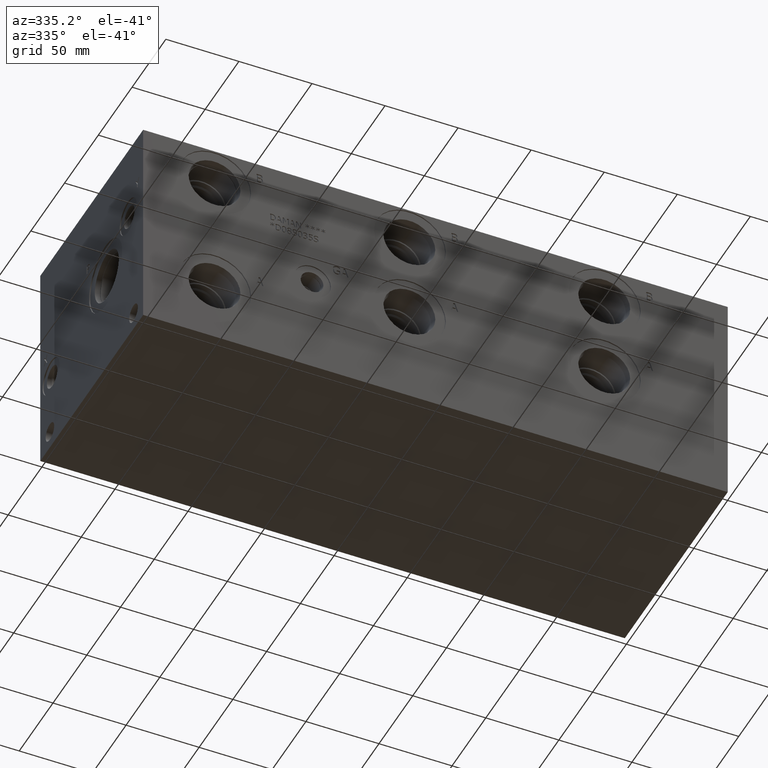
[diagram: clean part render]
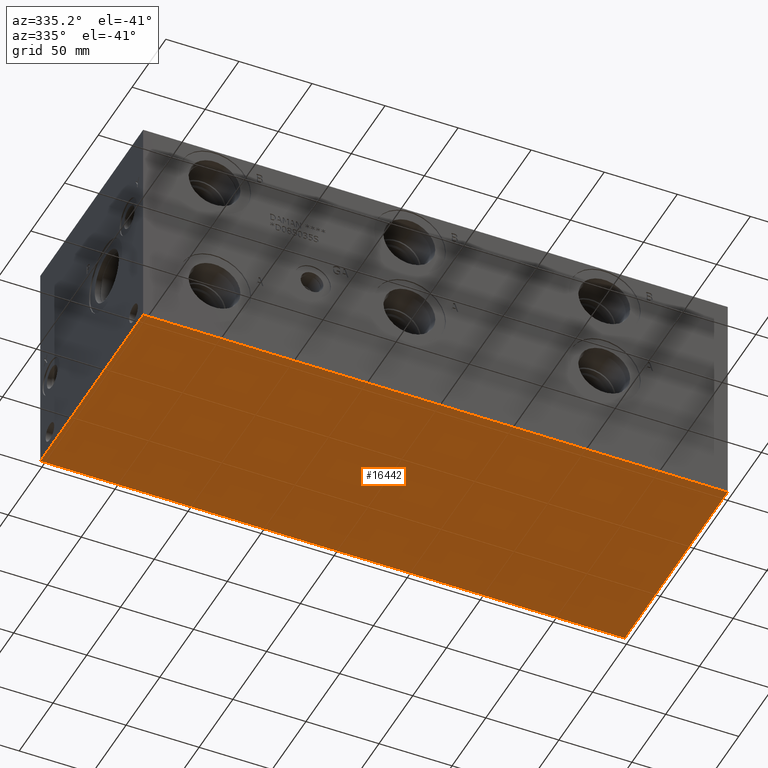
[diagram: same view with one face highlighted and labeled with its STEP entity id]
A machine part, auxiliary view. The second image highlights one B-rep face of the part: STEP entity #16442.
In plain terms, the highlighted planar face has unit normal (0, 0, 1).
Its self-contained STEP definition (entity closure, byte-faithful):
#2378=FACE_OUTER_BOUND('',#3398,.T.);
#3398=EDGE_LOOP('',(#14631,#14632,#14633,#14634));
#3581=LINE('',#21961,#4967);
#3847=LINE('',#24477,#5233);
#4780=LINE('',#28616,#6166);
#4783=LINE('',#28621,#6169);
#4967=VECTOR('',#17973,10.);
#5233=VECTOR('',#18377,10.);
#6166=VECTOR('',#21438,10.);
#6169=VECTOR('',#21443,10.);
#6303=VERTEX_POINT('',#21959);
#6304=VERTEX_POINT('',#21960);
#6645=VERTEX_POINT('',#24476);
#7763=VERTEX_POINT('',#28615);
#7963=EDGE_CURVE('',#6303,#6304,#3581,.T.);
#8469=EDGE_CURVE('',#6304,#6645,#3847,.T.);
#10050=EDGE_CURVE('',#7763,#6303,#4780,.T.);
#10053=EDGE_CURVE('',#6645,#7763,#4783,.T.);
#14631=ORIENTED_EDGE('',*,*,#8469,.F.);
#14632=ORIENTED_EDGE('',*,*,#7963,.F.);
#14633=ORIENTED_EDGE('',*,*,#10050,.F.);
#14634=ORIENTED_EDGE('',*,*,#10053,.F.);
#15052=PLANE('',#17658);
#16442=ADVANCED_FACE('',(#2378),#15052,.F.);
#17658=AXIS2_PLACEMENT_3D('',#28625,#21449,#21450);
#17973=DIRECTION('',(0.,-1.,0.));
#18377=DIRECTION('',(1.,0.,0.));
#21438=DIRECTION('',(-1.,0.,0.));
#21443=DIRECTION('',(0.,1.,0.));
#21449=DIRECTION('center_axis',(0.,0.,1.));
#21450=DIRECTION('ref_axis',(1.,0.,0.));
#21959=CARTESIAN_POINT('',(0.,152.4,0.));
#21960=CARTESIAN_POINT('',(0.,0.,0.));
#21961=CARTESIAN_POINT('',(0.,152.4,0.));
#24476=CARTESIAN_POINT('',(400.05,0.,0.));
#24477=CARTESIAN_POINT('',(0.,0.,0.));
#28615=CARTESIAN_POINT('',(400.05,152.4,0.));
#28616=CARTESIAN_POINT('',(400.05,152.4,0.));
#28621=CARTESIAN_POINT('',(400.05,0.,0.));
#28625=CARTESIAN_POINT('Origin',(200.025,76.2,0.));